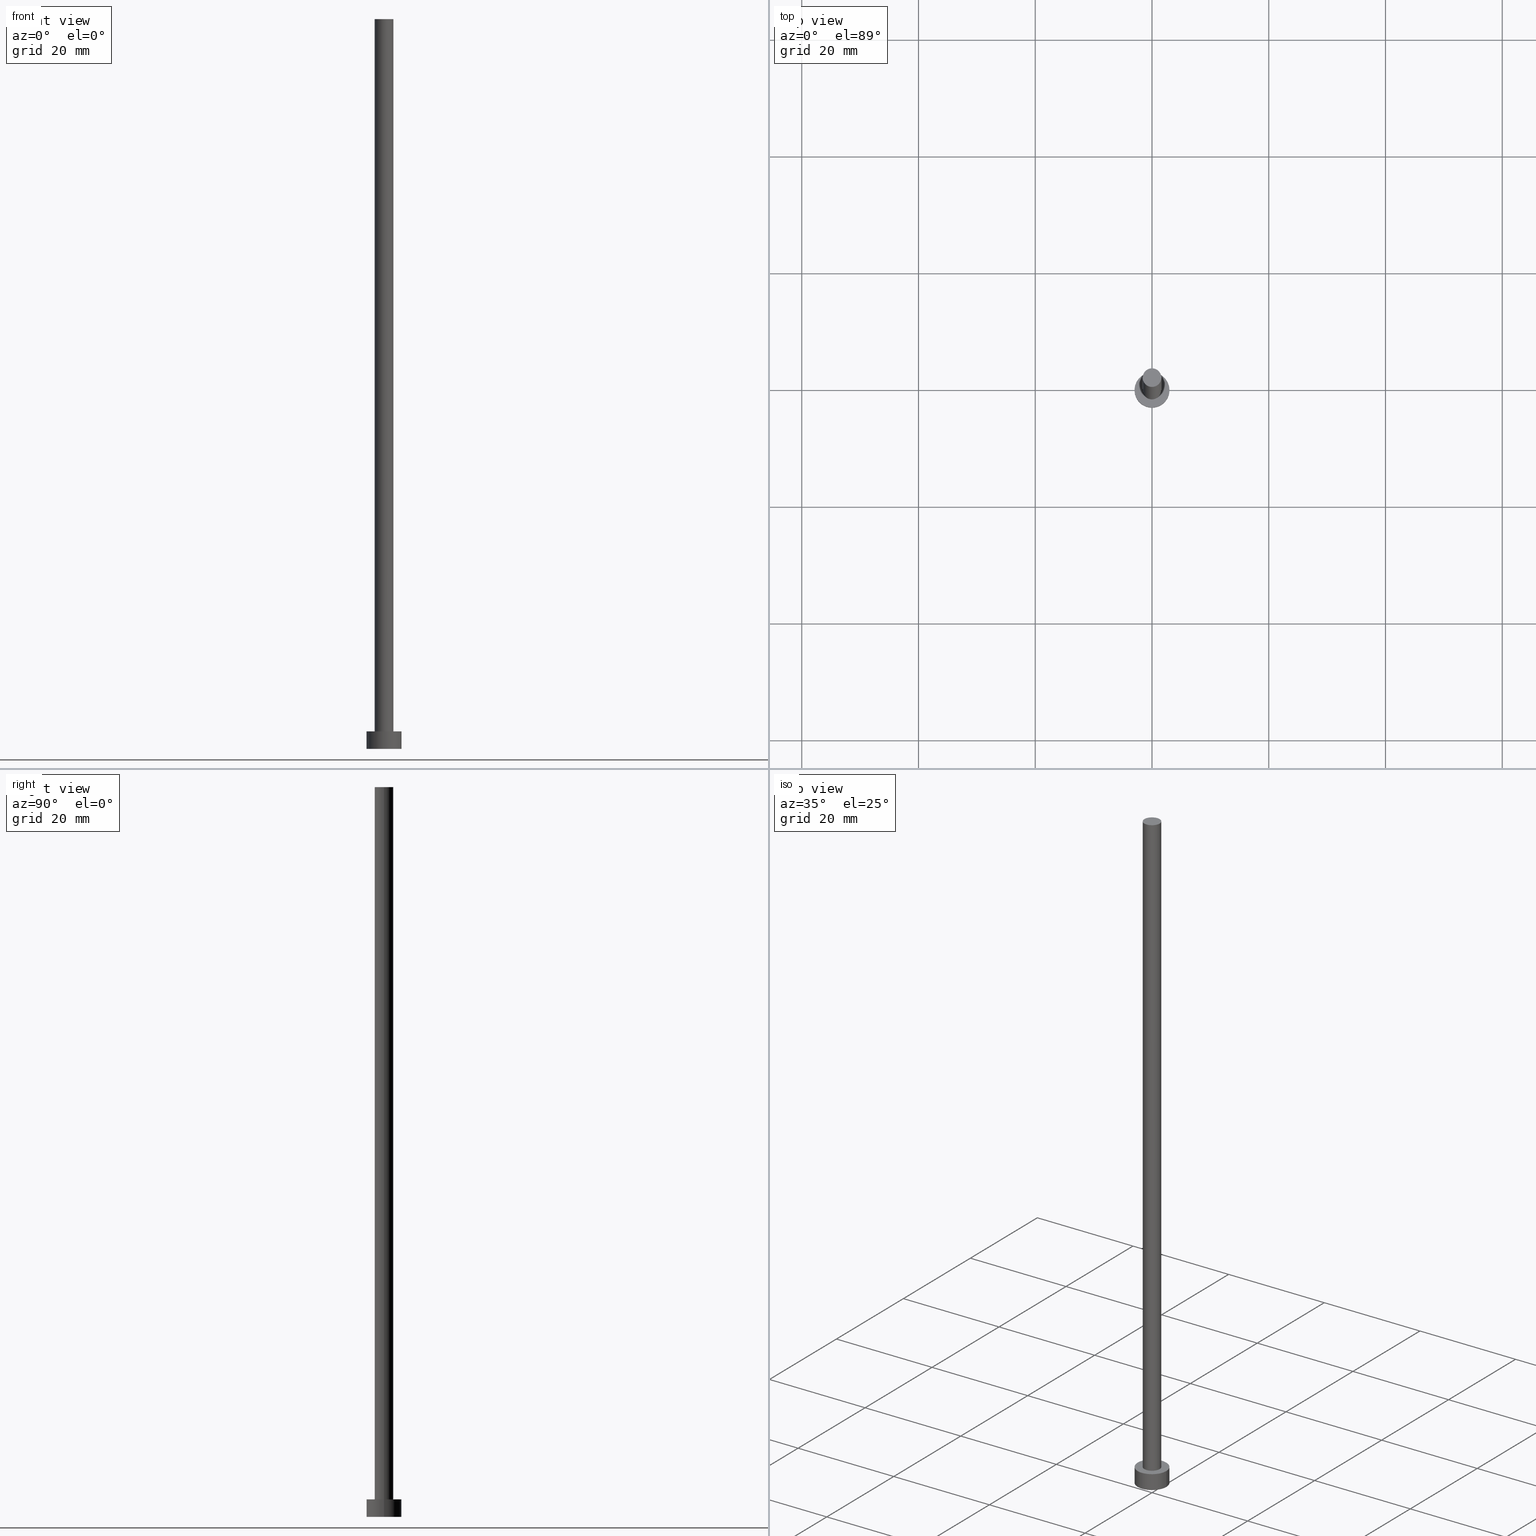
[diagram: canonical four-view strip — front | top / right | iso, engineering-drawing reading convention]
A machine part, canonical four-view strip (front | top / right | iso — engineering-drawing reading convention). The complete STEP part file that produces these views, byte-faithful:
ISO-10303-21;
HEADER;
FILE_DESCRIPTION (( 'STEP AP203' ),
    '1' );
FILE_NAME ('16a9.STEP',
    '2023-02-12T12:12:35',
    ( '' ),
    ( '' ),
    'SwSTEP 2.0',
    'SolidWorks 2019',
    '' );
FILE_SCHEMA (( 'CONFIG_CONTROL_DESIGN' ));
ENDSEC;

DATA;
#1 = VERTEX_POINT ( 'NONE', #106 ) ;
#2 = DATE_TIME_ROLE ( 'creation_date' ) ;
#3 = CARTESIAN_POINT ( 'NONE',  ( 3.000000000000000444, 3.673940397442060361E-16, 0.000000000000000000 ) ) ;
#4 = DIRECTION ( 'NONE',  ( 1.000000000000000000, 0.000000000000000000, -0.000000000000000000 ) ) ;
#5 = MECHANICAL_CONTEXT ( 'NONE', #247, 'mechanical' ) ;
#6 = DIRECTION ( 'NONE',  ( -0.000000000000000000, -0.000000000000000000, -1.000000000000000000 ) ) ;
#7 = CC_DESIGN_APPROVAL ( #235, ( #221 ) ) ;
#8 = CALENDAR_DATE ( 2023, 12, 2 ) ;
#9 = DIRECTION ( 'NONE',  ( 1.000000000000000000, 0.000000000000000000, 0.000000000000000000 ) ) ;
#10 = PERSON_AND_ORGANIZATION_ROLE ( 'creator' ) ;
#11 = CARTESIAN_POINT ( 'NONE',  ( 0.000000000000000000, 0.000000000000000000, 3.000000000000000000 ) ) ;
#12 = CC_DESIGN_PERSON_AND_ORGANIZATION_ASSIGNMENT ( #194, #10, ( #225 ) ) ;
#13 = DIRECTION ( 'NONE',  ( -1.000000000000000000, 0.000000000000000000, 0.000000000000000000 ) ) ;
#14 = CIRCLE ( 'NONE', #224, 1.600000000000000089 ) ;
#15 = APPLICATION_CONTEXT ( 'configuration controlled 3d designs of mechanical parts and assemblies' ) ;
#16 = VERTEX_POINT ( 'NONE', #3 ) ;
#17 = PERSON_AND_ORGANIZATION_ROLE ( 'design_supplier' ) ;
#18 = EDGE_CURVE ( 'NONE', #19, #163, #58, .T. ) ;
#19 = VERTEX_POINT ( 'NONE', #148 ) ;
#20 = ORIENTED_EDGE ( 'NONE', *, *, #255, .F. ) ;
#21 = COORDINATED_UNIVERSAL_TIME_OFFSET ( 1, 0, .AHEAD. ) ;
#22 =( NAMED_UNIT ( * ) SI_UNIT ( $, .STERADIAN. ) SOLID_ANGLE_UNIT ( ) );
#23 = DIRECTION ( 'NONE',  ( 1.000000000000000000, 0.000000000000000000, 0.000000000000000000 ) ) ;
#24 = ADVANCED_FACE ( 'NONE', ( #232 ), #49, .T. ) ;
#25 = CARTESIAN_POINT ( 'NONE',  ( 1.600000000000000089, 1.959434878635764737E-16, 125.0000000000000000 ) ) ;
#26 = CARTESIAN_POINT ( 'NONE',  ( -3.000000000000000444, 0.000000000000000000, 3.000000000000000000 ) ) ;
#27 = DIRECTION ( 'NONE',  ( 0.000000000000000000, 0.000000000000000000, 1.000000000000000000 ) ) ;
#28 = AXIS2_PLACEMENT_3D ( 'NONE', #193, #108, #4 ) ;
#29 = LOCAL_TIME ( 13, 12, 35.00000000000000000, #154 ) ;
#30 = DIRECTION ( 'NONE',  ( 0.000000000000000000, 0.000000000000000000, 1.000000000000000000 ) ) ;
#31 = ADVANCED_FACE ( 'NONE', ( #151 ), #111, .T. ) ;
#32 = SHAPE_DEFINITION_REPRESENTATION ( #64, #165 ) ;
#33 = LOCAL_TIME ( 13, 12, 35.00000000000000000, #115 ) ;
#34 = CC_DESIGN_DATE_AND_TIME_ASSIGNMENT ( #99, #138, ( #253 ) ) ;
#35 = PERSON_AND_ORGANIZATION ( #73, #142 ) ;
#36 = ORIENTED_EDGE ( 'NONE', *, *, #18, .T. ) ;
#37 = PERSON_AND_ORGANIZATION_ROLE ( 'classification_officer' ) ;
#38 = ADVANCED_FACE ( 'NONE', ( #190 ), #132, .T. ) ;
#39 = AXIS2_PLACEMENT_3D ( 'NONE', #65, #187, #86 ) ;
#40 = CC_DESIGN_DATE_AND_TIME_ASSIGNMENT ( #186, #2, ( #225 ) ) ;
#41 = DESIGN_CONTEXT ( 'detailed design', #15, 'design' ) ;
#42 =( LENGTH_UNIT ( ) NAMED_UNIT ( * ) SI_UNIT ( .MILLI., .METRE. ) );
#43 = FACE_OUTER_BOUND ( 'NONE', #145, .T. ) ;
#44 = DIRECTION ( 'NONE',  ( 0.000000000000000000, 0.000000000000000000, 1.000000000000000000 ) ) ;
#45 = ADVANCED_FACE ( 'NONE', ( #43 ), #219, .T. ) ;
#46 = FACE_OUTER_BOUND ( 'NONE', #137, .T. ) ;
#47 = DIRECTION ( 'NONE',  ( -0.000000000000000000, -0.000000000000000000, -1.000000000000000000 ) ) ;
#48 = CARTESIAN_POINT ( 'NONE',  ( 0.000000000000000000, 0.000000000000000000, 3.000000000000000000 ) ) ;
#49 = CYLINDRICAL_SURFACE ( 'NONE', #55, 3.000000000000000444 ) ;
#50 = COORDINATED_UNIVERSAL_TIME_OFFSET ( 1, 0, .AHEAD. ) ;
#51 = CALENDAR_DATE ( 2023, 12, 2 ) ;
#52 = ORIENTED_EDGE ( 'NONE', *, *, #170, .F. ) ;
#53 = CC_DESIGN_PERSON_AND_ORGANIZATION_ASSIGNMENT ( #213, #89, ( #133 ) ) ;
#54 = EDGE_LOOP ( 'NONE', ( #103, #36 ) ) ;
#55 = AXIS2_PLACEMENT_3D ( 'NONE', #63, #131, #195 ) ;
#56 = VECTOR ( 'NONE', #167, 1000.000000000000000 ) ;
#57 = ORIENTED_EDGE ( 'NONE', *, *, #180, .T. ) ;
#58 = CIRCLE ( 'NONE', #80, 3.000000000000000444 ) ;
#59 = APPROVAL_PERSON_ORGANIZATION ( #243, #239, #192 ) ;
#60 = APPROVAL_ROLE ( '' ) ;
#61 = CARTESIAN_POINT ( 'NONE',  ( 0.000000000000000000, 0.000000000000000000, 0.000000000000000000 ) ) ;
#62 = AXIS2_PLACEMENT_3D ( 'NONE', #91, #196, #212 ) ;
#63 = CARTESIAN_POINT ( 'NONE',  ( 0.000000000000000000, 0.000000000000000000, 3.000000000000000000 ) ) ;
#64 = PRODUCT_DEFINITION_SHAPE ( 'NONE', 'NONE',  #225 ) ;
#65 = CARTESIAN_POINT ( 'NONE',  ( 0.000000000000000000, 0.000000000000000000, 0.000000000000000000 ) ) ;
#66 = FACE_BOUND ( 'NONE', #122, .T. ) ;
#67 = AXIS2_PLACEMENT_3D ( 'NONE', #153, #6, #230 ) ;
#68 = CALENDAR_DATE ( 2023, 12, 2 ) ;
#69 = EDGE_CURVE ( 'NONE', #16, #210, #204, .T. ) ;
#70 = DIRECTION ( 'NONE',  ( 0.000000000000000000, 0.000000000000000000, 1.000000000000000000 ) ) ;
#71 = AXIS2_PLACEMENT_3D ( 'NONE', #61, #209, #244 ) ;
#72 = CARTESIAN_POINT ( 'NONE',  ( -1.600000000000000089, 0.000000000000000000, 125.0000000000000000 ) ) ;
#73 = PERSON ( 'NEUR�EN�', 'NEUR�EN�', 'NEUR�EN�', ('NEUR�EN�'), ('NEUR�EN�'), ('NEUR�EN�') ) ;
#74 = APPROVAL_STATUS ( 'not_yet_approved' ) ;
#75 = CIRCLE ( 'NONE', #141, 1.600000000000000089 ) ;
#76 = CC_DESIGN_SECURITY_CLASSIFICATION ( #253, ( #221 ) ) ;
#77 = DATE_AND_TIME ( #68, #140 ) ;
#78 = ORIENTED_EDGE ( 'NONE', *, *, #81, .T. ) ;
#79 = ORIENTED_EDGE ( 'NONE', *, *, #255, .T. ) ;
#80 = AXIS2_PLACEMENT_3D ( 'NONE', #85, #188, #9 ) ;
#81 = EDGE_CURVE ( 'NONE', #123, #1, #14, .T. ) ;
#82 = CIRCLE ( 'NONE', #184, 3.000000000000000444 ) ;
#83 = ORIENTED_EDGE ( 'NONE', *, *, #254, .T. ) ;
#84 = PERSON_AND_ORGANIZATION ( #73, #142 ) ;
#85 = CARTESIAN_POINT ( 'NONE',  ( 0.000000000000000000, 0.000000000000000000, 3.000000000000000000 ) ) ;
#86 = DIRECTION ( 'NONE',  ( 1.000000000000000000, 0.000000000000000000, 0.000000000000000000 ) ) ;
#87 = CARTESIAN_POINT ( 'NONE',  ( 1.600000000000000089, 1.959434878635764737E-16, 3.000000000000000000 ) ) ;
#88 = EDGE_CURVE ( 'NONE', #160, #251, #75, .T. ) ;
#89 = PERSON_AND_ORGANIZATION_ROLE ( 'design_owner' ) ;
#90 = AXIS2_PLACEMENT_3D ( 'NONE', #215, #127, #124 ) ;
#91 = CARTESIAN_POINT ( 'NONE',  ( 0.000000000000000000, 0.000000000000000000, 125.0000000000000000 ) ) ;
#92 = DATE_AND_TIME ( #8, #29 ) ;
#93 = DIRECTION ( 'NONE',  ( 1.000000000000000000, 0.000000000000000000, -0.000000000000000000 ) ) ;
#94 = DIRECTION ( 'NONE',  ( -0.000000000000000000, -0.000000000000000000, -1.000000000000000000 ) ) ;
#95 = SECURITY_CLASSIFICATION_LEVEL ( 'unclassified' ) ;
#96 =( GEOMETRIC_REPRESENTATION_CONTEXT ( 3 ) GLOBAL_UNCERTAINTY_ASSIGNED_CONTEXT ( ( #143 ) ) GLOBAL_UNIT_ASSIGNED_CONTEXT ( ( #42, #169, #22 ) ) REPRESENTATION_CONTEXT ( 'NONE', 'WORKASPACE' ) );
#97 = LOCAL_TIME ( 13, 12, 35.00000000000000000, #246 ) ;
#98 = ORIENTED_EDGE ( 'NONE', *, *, #69, .F. ) ;
#99 = DATE_AND_TIME ( #201, #33 ) ;
#100 = ORIENTED_EDGE ( 'NONE', *, *, #208, .F. ) ;
#101 = ORIENTED_EDGE ( 'NONE', *, *, #170, .T. ) ;
#102 = ADVANCED_FACE ( 'NONE', ( #218 ), #245, .F. ) ;
#103 = ORIENTED_EDGE ( 'NONE', *, *, #236, .T. ) ;
#104 = CC_DESIGN_APPROVAL ( #239, ( #225 ) ) ;
#105 = CALENDAR_DATE ( 2023, 12, 2 ) ;
#106 = CARTESIAN_POINT ( 'NONE',  ( -1.600000000000000089, 0.000000000000000000, 3.000000000000000000 ) ) ;
#107 = DIRECTION ( 'NONE',  ( 1.000000000000000000, 0.000000000000000000, 0.000000000000000000 ) ) ;
#108 = DIRECTION ( 'NONE',  ( 0.000000000000000000, 0.000000000000000000, 1.000000000000000000 ) ) ;
#109 = DIRECTION ( 'NONE',  ( -0.000000000000000000, -0.000000000000000000, -1.000000000000000000 ) ) ;
#110 = CIRCLE ( 'NONE', #241, 1.600000000000000089 ) ;
#111 = PLANE ( 'NONE',  #136 ) ;
#112 = APPROVAL_STATUS ( 'not_yet_approved' ) ;
#113 = CYLINDRICAL_SURFACE ( 'NONE', #216, 3.000000000000000444 ) ;
#114 = DIRECTION ( 'NONE',  ( 1.000000000000000000, 0.000000000000000000, -0.000000000000000000 ) ) ;
#115 = COORDINATED_UNIVERSAL_TIME_OFFSET ( 1, 0, .AHEAD. ) ;
#116 = ORIENTED_EDGE ( 'NONE', *, *, #208, .T. ) ;
#117 = PERSON_AND_ORGANIZATION ( #73, #142 ) ;
#118 = MANIFOLD_SOLID_BREP ( 'P�idat vysunut�m3', #139 ) ;
#119 = APPROVAL_ROLE ( '' ) ;
#120 = AXIS2_PLACEMENT_3D ( 'NONE', #172, #159, #177 ) ;
#121 = ADVANCED_FACE ( 'NONE', ( #66, #157 ), #155, .T. ) ;
#122 = EDGE_LOOP ( 'NONE', ( #20, #134 ) ) ;
#123 = VERTEX_POINT ( 'NONE', #87 ) ;
#124 = DIRECTION ( 'NONE',  ( 1.000000000000000000, 0.000000000000000000, 0.000000000000000000 ) ) ;
#125 = CARTESIAN_POINT ( 'NONE',  ( 1.600000000000000089, 1.959434878635764737E-16, 125.0000000000000000 ) ) ;
#126 = DIRECTION ( 'NONE',  ( -0.000000000000000000, -0.000000000000000000, -1.000000000000000000 ) ) ;
#127 = DIRECTION ( 'NONE',  ( 0.000000000000000000, 0.000000000000000000, 1.000000000000000000 ) ) ;
#128 = LINE ( 'NONE', #168, #156 ) ;
#129 = AXIS2_PLACEMENT_3D ( 'NONE', #231, #30, #114 ) ;
#130 = APPROVAL_PERSON_ORGANIZATION ( #84, #235, #60 ) ;
#131 = DIRECTION ( 'NONE',  ( -0.000000000000000000, -0.000000000000000000, -1.000000000000000000 ) ) ;
#132 = CYLINDRICAL_SURFACE ( 'NONE', #67, 1.600000000000000089 ) ;
#133 = PRODUCT ( '16a9', '16a9', '', ( #5 ) ) ;
#134 = ORIENTED_EDGE ( 'NONE', *, *, #81, .F. ) ;
#135 = ADVANCED_FACE ( 'NONE', ( #46 ), #113, .T. ) ;
#136 = AXIS2_PLACEMENT_3D ( 'NONE', #228, #44, #93 ) ;
#137 = EDGE_LOOP ( 'NONE', ( #181, #116, #238, #220 ) ) ;
#138 = DATE_TIME_ROLE ( 'classification_date' ) ;
#139 = CLOSED_SHELL ( 'NONE', ( #45, #135, #24, #121, #102, #38, #31 ) ) ;
#140 = LOCAL_TIME ( 13, 12, 35.00000000000000000, #50 ) ;
#141 = AXIS2_PLACEMENT_3D ( 'NONE', #175, #70, #23 ) ;
#142 = ORGANIZATION ( 'NEUR�EN�', 'NEUR�EN�', '' ) ;
#143 = UNCERTAINTY_MEASURE_WITH_UNIT (LENGTH_MEASURE( 1.000000000000000082E-05 ), #42, 'distance_accuracy_value', 'NONE');
#144 = CC_DESIGN_PERSON_AND_ORGANIZATION_ASSIGNMENT ( #35, #161, ( #221 ) ) ;
#145 = EDGE_LOOP ( 'NONE', ( #182, #101, #78, #200 ) ) ;
#146 = APPLICATION_PROTOCOL_DEFINITION ( 'international standard', 'config_control_design', 1994, #247 ) ;
#147 = CARTESIAN_POINT ( 'NONE',  ( 0.000000000000000000, 0.000000000000000000, 3.000000000000000000 ) ) ;
#148 = CARTESIAN_POINT ( 'NONE',  ( 3.000000000000000444, 3.673940397442060361E-16, 3.000000000000000000 ) ) ;
#149 = CC_DESIGN_PERSON_AND_ORGANIZATION_ASSIGNMENT ( #117, #37, ( #253 ) ) ;
#150 = CARTESIAN_POINT ( 'NONE',  ( -1.600000000000000089, 0.000000000000000000, 125.0000000000000000 ) ) ;
#151 = FACE_OUTER_BOUND ( 'NONE', #234, .T. ) ;
#152 = CARTESIAN_POINT ( 'NONE',  ( -3.000000000000000444, 0.000000000000000000, 0.000000000000000000 ) ) ;
#153 = CARTESIAN_POINT ( 'NONE',  ( 0.000000000000000000, 0.000000000000000000, 125.0000000000000000 ) ) ;
#154 = COORDINATED_UNIVERSAL_TIME_OFFSET ( 1, 0, .AHEAD. ) ;
#155 = PLANE ( 'NONE',  #129 ) ;
#156 = VECTOR ( 'NONE', #47, 1000.000000000000000 ) ;
#157 = FACE_OUTER_BOUND ( 'NONE', #54, .T. ) ;
#158 = DATE_AND_TIME ( #51, #97 ) ;
#159 = DIRECTION ( 'NONE',  ( 0.000000000000000000, 0.000000000000000000, 1.000000000000000000 ) ) ;
#160 = VERTEX_POINT ( 'NONE', #125 ) ;
#161 = PERSON_AND_ORGANIZATION_ROLE ( 'creator' ) ;
#162 = EDGE_LOOP ( 'NONE', ( #52, #237, #57, #79 ) ) ;
#163 = VERTEX_POINT ( 'NONE', #214 ) ;
#164 = CIRCLE ( 'NONE', #39, 3.000000000000000444 ) ;
#165 = ADVANCED_BREP_SHAPE_REPRESENTATION ( '16a9', ( #118, #71 ), #96 ) ;
#166 = VECTOR ( 'NONE', #109, 1000.000000000000000 ) ;
#167 = DIRECTION ( 'NONE',  ( -0.000000000000000000, -0.000000000000000000, -1.000000000000000000 ) ) ;
#168 = CARTESIAN_POINT ( 'NONE',  ( 3.000000000000000444, 3.673940397442060361E-16, 3.000000000000000000 ) ) ;
#169 =( NAMED_UNIT ( * ) PLANE_ANGLE_UNIT ( ) SI_UNIT ( $, .RADIAN. ) );
#170 = EDGE_CURVE ( 'NONE', #160, #123, #176, .T. ) ;
#171 = APPLICATION_PROTOCOL_DEFINITION ( 'international standard', 'config_control_design', 1994, #15 ) ;
#172 = CARTESIAN_POINT ( 'NONE',  ( 0.000000000000000000, 0.000000000000000000, 125.0000000000000000 ) ) ;
#173 = EDGE_CURVE ( 'NONE', #251, #160, #206, .T. ) ;
#174 = APPROVAL_DATE_TIME ( #92, #239 ) ;
#175 = CARTESIAN_POINT ( 'NONE',  ( 0.000000000000000000, 0.000000000000000000, 125.0000000000000000 ) ) ;
#176 = LINE ( 'NONE', #25, #166 ) ;
#177 = DIRECTION ( 'NONE',  ( 1.000000000000000000, 0.000000000000000000, 0.000000000000000000 ) ) ;
#178 = CC_DESIGN_APPROVAL ( #242, ( #253 ) ) ;
#179 = ORIENTED_EDGE ( 'NONE', *, *, #88, .T. ) ;
#180 = EDGE_CURVE ( 'NONE', #251, #1, #248, .T. ) ;
#181 = ORIENTED_EDGE ( 'NONE', *, *, #18, .F. ) ;
#182 = ORIENTED_EDGE ( 'NONE', *, *, #88, .F. ) ;
#183 = EDGE_LOOP ( 'NONE', ( #207, #98 ) ) ;
#184 = AXIS2_PLACEMENT_3D ( 'NONE', #147, #226, #107 ) ;
#185 = EDGE_CURVE ( 'NONE', #163, #210, #189, .T. ) ;
#186 = DATE_AND_TIME ( #105, #191 ) ;
#187 = DIRECTION ( 'NONE',  ( 0.000000000000000000, 0.000000000000000000, 1.000000000000000000 ) ) ;
#188 = DIRECTION ( 'NONE',  ( 0.000000000000000000, 0.000000000000000000, 1.000000000000000000 ) ) ;
#189 = LINE ( 'NONE', #26, #197 ) ;
#190 = FACE_OUTER_BOUND ( 'NONE', #162, .T. ) ;
#191 = LOCAL_TIME ( 13, 12, 35.00000000000000000, #21 ) ;
#192 = APPROVAL_ROLE ( '' ) ;
#193 = CARTESIAN_POINT ( 'NONE',  ( 0.000000000000000000, 0.000000000000000000, 0.000000000000000000 ) ) ;
#194 = PERSON_AND_ORGANIZATION ( #73, #142 ) ;
#195 = DIRECTION ( 'NONE',  ( -1.000000000000000000, 0.000000000000000000, 0.000000000000000000 ) ) ;
#196 = DIRECTION ( 'NONE',  ( -0.000000000000000000, -0.000000000000000000, -1.000000000000000000 ) ) ;
#197 = VECTOR ( 'NONE', #126, 1000.000000000000000 ) ;
#198 = PERSON_AND_ORGANIZATION ( #73, #142 ) ;
#199 = CC_DESIGN_PERSON_AND_ORGANIZATION_ASSIGNMENT ( #233, #17, ( #221 ) ) ;
#200 = ORIENTED_EDGE ( 'NONE', *, *, #180, .F. ) ;
#201 = CALENDAR_DATE ( 2023, 12, 2 ) ;
#202 = APPROVAL_DATE_TIME ( #158, #242 ) ;
#203 = ORIENTED_EDGE ( 'NONE', *, *, #173, .T. ) ;
#204 = CIRCLE ( 'NONE', #90, 3.000000000000000444 ) ;
#205 = PRODUCT_RELATED_PRODUCT_CATEGORY ( 'detail', '', ( #133 ) ) ;
#206 = CIRCLE ( 'NONE', #120, 1.600000000000000089 ) ;
#207 = ORIENTED_EDGE ( 'NONE', *, *, #254, .F. ) ;
#208 = EDGE_CURVE ( 'NONE', #19, #16, #128, .T. ) ;
#209 = DIRECTION ( 'NONE',  ( 0.000000000000000000, 0.000000000000000000, 1.000000000000000000 ) ) ;
#210 = VERTEX_POINT ( 'NONE', #152 ) ;
#211 = DIRECTION ( 'NONE',  ( 0.000000000000000000, 0.000000000000000000, 1.000000000000000000 ) ) ;
#212 = DIRECTION ( 'NONE',  ( -1.000000000000000000, 0.000000000000000000, 0.000000000000000000 ) ) ;
#213 = PERSON_AND_ORGANIZATION ( #73, #142 ) ;
#214 = CARTESIAN_POINT ( 'NONE',  ( -3.000000000000000444, 0.000000000000000000, 3.000000000000000000 ) ) ;
#215 = CARTESIAN_POINT ( 'NONE',  ( 0.000000000000000000, 0.000000000000000000, 0.000000000000000000 ) ) ;
#216 = AXIS2_PLACEMENT_3D ( 'NONE', #11, #94, #13 ) ;
#217 = DIRECTION ( 'NONE',  ( 1.000000000000000000, 0.000000000000000000, 0.000000000000000000 ) ) ;
#218 = FACE_OUTER_BOUND ( 'NONE', #183, .T. ) ;
#219 = CYLINDRICAL_SURFACE ( 'NONE', #62, 1.600000000000000089 ) ;
#220 = ORIENTED_EDGE ( 'NONE', *, *, #185, .F. ) ;
#221 = PRODUCT_DEFINITION_FORMATION_WITH_SPECIFIED_SOURCE ( 'LIBOVOLN�', '', #133, .NOT_KNOWN. ) ;
#222 = APPROVAL_DATE_TIME ( #77, #235 ) ;
#223 = EDGE_LOOP ( 'NONE', ( #100, #252, #250, #83 ) ) ;
#224 = AXIS2_PLACEMENT_3D ( 'NONE', #48, #27, #229 ) ;
#225 = PRODUCT_DEFINITION ( 'NEZN�M�', '', #221, #41 ) ;
#226 = DIRECTION ( 'NONE',  ( 0.000000000000000000, 0.000000000000000000, 1.000000000000000000 ) ) ;
#227 = CARTESIAN_POINT ( 'NONE',  ( 0.000000000000000000, 0.000000000000000000, 3.000000000000000000 ) ) ;
#228 = CARTESIAN_POINT ( 'NONE',  ( 0.000000000000000000, 0.000000000000000000, 125.0000000000000000 ) ) ;
#229 = DIRECTION ( 'NONE',  ( 1.000000000000000000, 0.000000000000000000, 0.000000000000000000 ) ) ;
#230 = DIRECTION ( 'NONE',  ( -1.000000000000000000, 0.000000000000000000, 0.000000000000000000 ) ) ;
#231 = CARTESIAN_POINT ( 'NONE',  ( 0.000000000000000000, 0.000000000000000000, 3.000000000000000000 ) ) ;
#232 = FACE_OUTER_BOUND ( 'NONE', #223, .T. ) ;
#233 = PERSON_AND_ORGANIZATION ( #73, #142 ) ;
#234 = EDGE_LOOP ( 'NONE', ( #203, #179 ) ) ;
#235 = APPROVAL ( #240, 'NEUR�EN�' ) ;
#236 = EDGE_CURVE ( 'NONE', #163, #19, #82, .T. ) ;
#237 = ORIENTED_EDGE ( 'NONE', *, *, #173, .F. ) ;
#238 = ORIENTED_EDGE ( 'NONE', *, *, #69, .T. ) ;
#239 = APPROVAL ( #112, 'NEUR�EN�' ) ;
#240 = APPROVAL_STATUS ( 'not_yet_approved' ) ;
#241 = AXIS2_PLACEMENT_3D ( 'NONE', #227, #211, #217 ) ;
#242 = APPROVAL ( #74, 'NEUR�EN�' ) ;
#243 = PERSON_AND_ORGANIZATION ( #73, #142 ) ;
#244 = DIRECTION ( 'NONE',  ( 1.000000000000000000, 0.000000000000000000, 0.000000000000000000 ) ) ;
#245 = PLANE ( 'NONE',  #28 ) ;
#246 = COORDINATED_UNIVERSAL_TIME_OFFSET ( 1, 0, .AHEAD. ) ;
#247 = APPLICATION_CONTEXT ( 'configuration controlled 3d designs of mechanical parts and assemblies' ) ;
#248 = LINE ( 'NONE', #72, #56 ) ;
#249 = APPROVAL_PERSON_ORGANIZATION ( #198, #242, #119 ) ;
#250 = ORIENTED_EDGE ( 'NONE', *, *, #185, .T. ) ;
#251 = VERTEX_POINT ( 'NONE', #150 ) ;
#252 = ORIENTED_EDGE ( 'NONE', *, *, #236, .F. ) ;
#253 = SECURITY_CLASSIFICATION ( '', '', #95 ) ;
#254 = EDGE_CURVE ( 'NONE', #210, #16, #164, .T. ) ;
#255 = EDGE_CURVE ( 'NONE', #1, #123, #110, .T. ) ;
ENDSEC;
END-ISO-10303-21;
